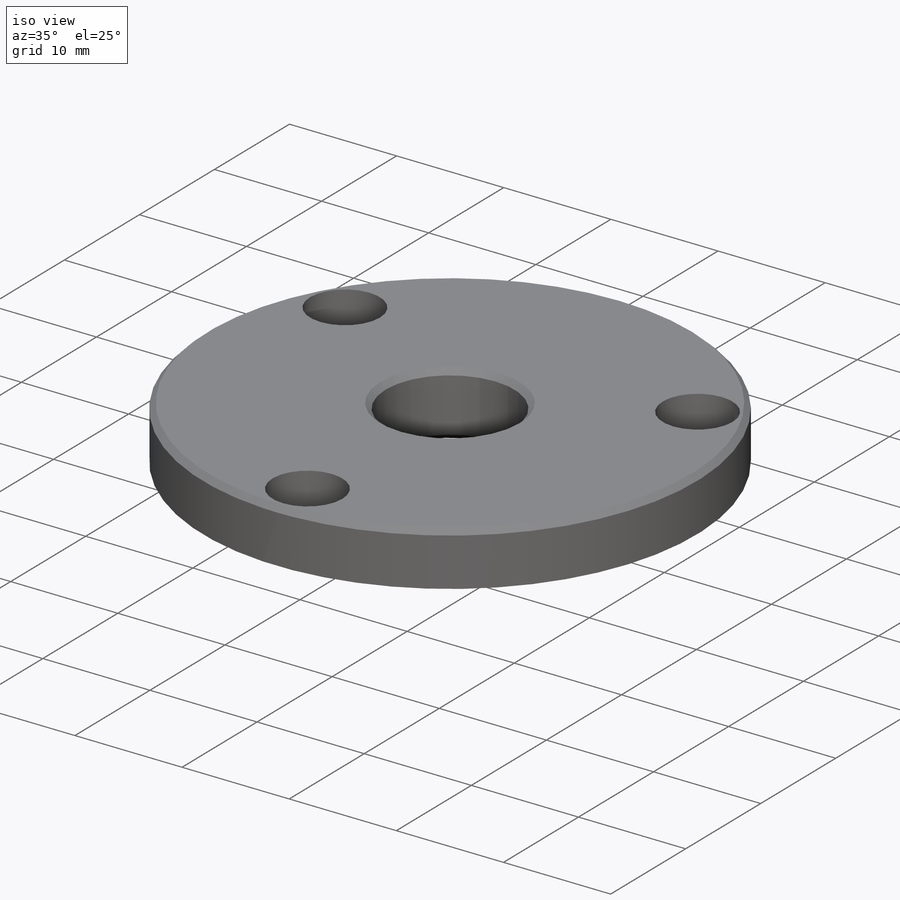
[diagram: iso view]
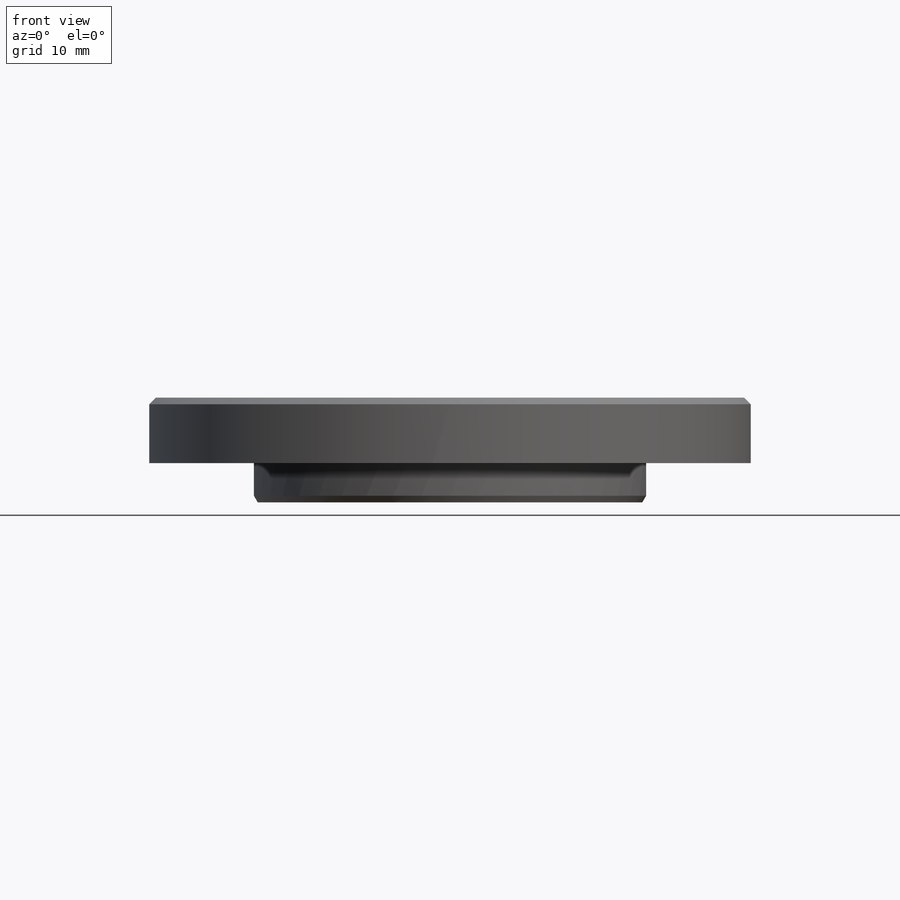
[diagram: front view]
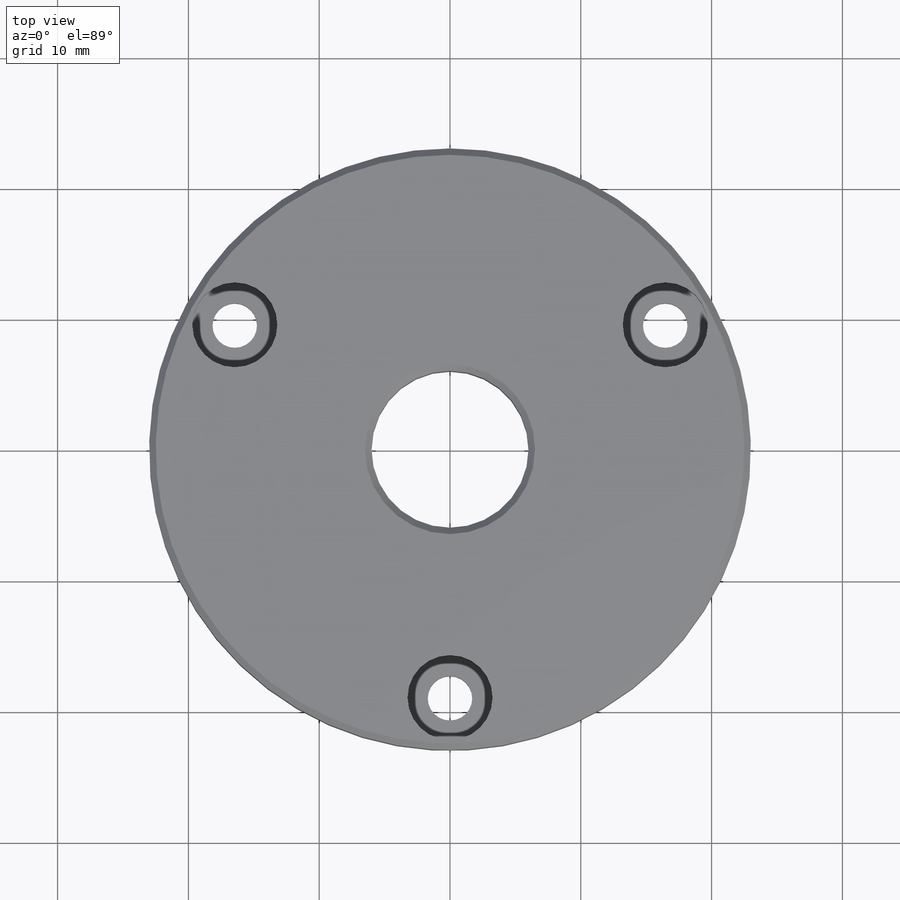
[diagram: top view]
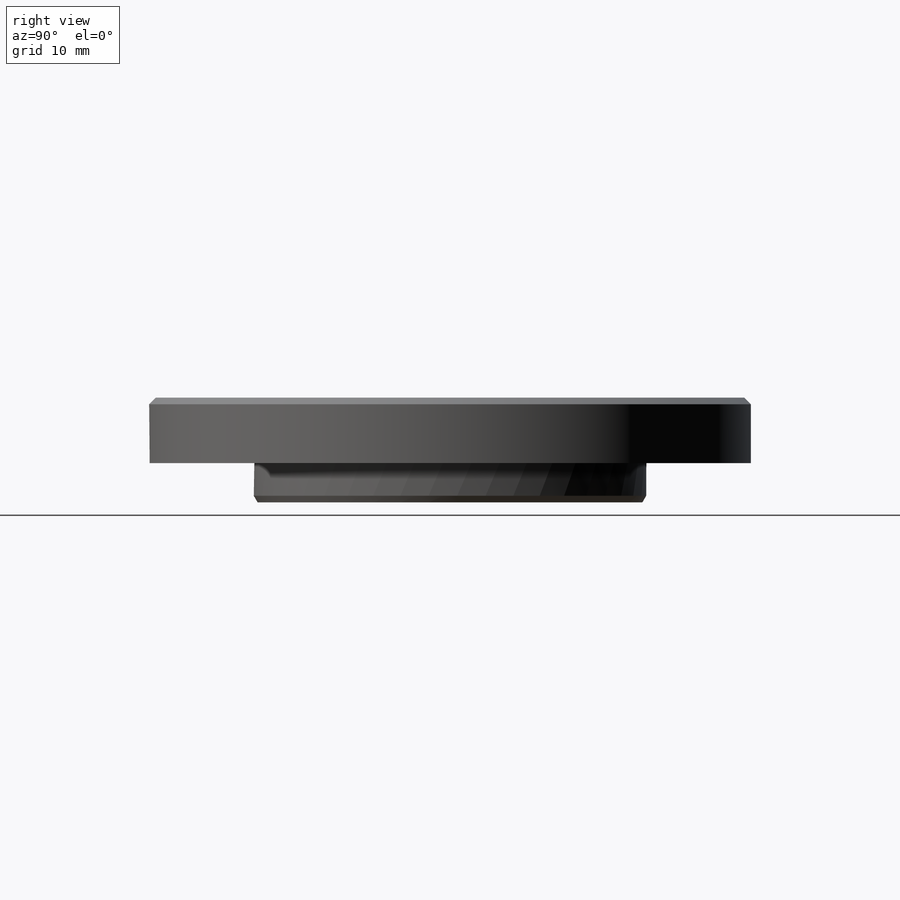
[diagram: right view]
SOLIDWORKS PART (.sldprt)
format: sldprt  version: not decoded by parser v0  size: 214,528 bytes
history: native  units: mm
features: chamfer x4, plane x3, sketch x3, material x1, revolve x1, hole x1, pattern_circular x1 (+13 scaffold rows collapsed)
feature tree (27):
  scaffold x13  (default folders/planes/origin — collapsed)
  material  "3.1325 (EN-AW 2017A)"
  plane  "Plan de face"
  plane  "Plan de dessus"
  plane  "Plan de droite"
  sketch  "Esquisse1"  dims[D1=15.0mm D2=23.0mm D3=3.0mm D4=5.0mm D5=11.75mm D6=2.0mm D7=6.0mm]
  revolve  "Révolution1"  Angle=360deg
  chamfer  "Chanfrein2"  Distance=0.5mm Angle=30deg
  chamfer  "Chanfrein3"  Distance=0.5mm Angle=45deg
  chamfer  "Chanfrein4"  Distance=0.5mm Angle=45deg
  chamfer  "Chanfrein5"  Distance=0.5mm Angle=45deg
  hole  "Chambrage pour vis à tête hexagonale M31"  Diameter=3.4mm Depth=8mm
  sketch  "Esquisse4"  dims[D1=~0.29898mm]
  sketch  "Esquisse3"  dims[hole-wizard template sketch: 41 standard entries collapsed; hole parameters kept: c12.Diamètre du perçage jusqu'au prochain=3.4mm c12.Profondeur du perçage jusqu'au prochain=8.0mm c12.Diamètre du chambrage=6.5mm c12.Profondeur du chambrage=3.0mm]
  pattern_circular  "Répétition circulaire1"  Count=3 Angle=360deg
decode coverage: 10 of 10 modeling features carry decoded parameters
note: ~ marks probable driven/reference dimensions
note: suppression state not decoded; provenance and decode notes live in map.json
